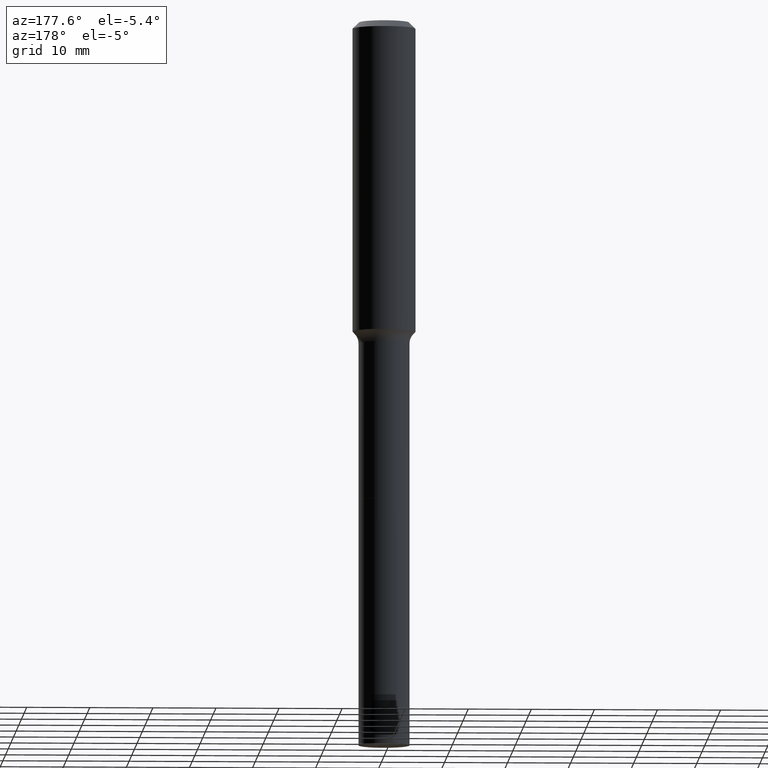
[diagram: clean part render]
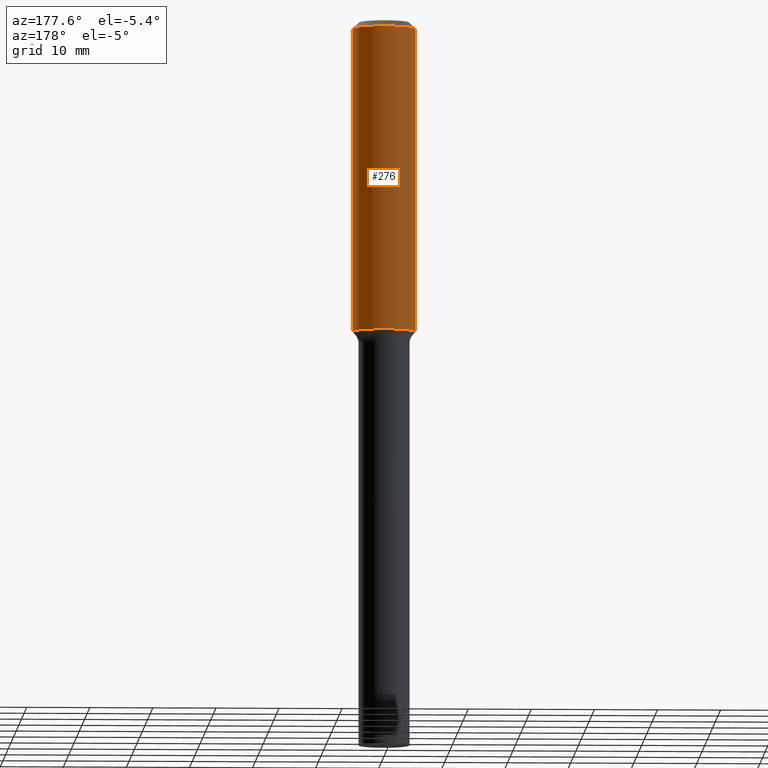
[diagram: same view with one face highlighted and labeled with its STEP entity id]
A machine part, auxiliary view. The second image highlights one B-rep face of the part: STEP entity #276.
In plain terms, the highlighted cylindrical surface (edge-blend (fillet) strip) has radius 5 mm, axis along (-0, 0, 1).
Its self-contained STEP definition (entity closure, byte-faithful):
#16 = EDGE_CURVE ( 'NONE', #395, #198, #453, .T. ) ;
#28 = EDGE_CURVE ( 'NONE', #369, #68, #243, .T. ) ;
#38 = CARTESIAN_POINT ( 'NONE',  ( 0.1968500000000002470, -8.134036243287336255E-15, -1.935980572195880711 ) ) ;
#44 = ORIENTED_EDGE ( 'NONE', *, *, #433, .T. ) ;
#68 = VERTEX_POINT ( 'NONE', #322 ) ;
#104 = CIRCLE ( 'NONE', #455, 0.1968500000000002470 ) ;
#111 = DIRECTION ( 'NONE',  ( 1.000000000000000000, -6.982962677686266711E-15, 4.876176775795935793E-29 ) ) ;
#113 = AXIS2_PLACEMENT_3D ( 'NONE', #497, #409, #290 ) ;
#123 = CARTESIAN_POINT ( 'NONE',  ( 0.1968500000000001082, -1.374596203102542397E-15, 9.598753983154305062E-30 ) ) ;
#146 = DIRECTION ( 'NONE',  ( -2.445468806185136597E-29, 3.491481338843145583E-15, 1.000000000000000000 ) ) ;
#159 = VECTOR ( 'NONE', #446, 39.37007874015748143 ) ;
#198 = VERTEX_POINT ( 'NONE', #392 ) ;
#199 = CARTESIAN_POINT ( 'NONE',  ( 4.734380098685478056E-29, -6.759440040184793069E-15, -1.935980572195880711 ) ) ;
#235 = ORIENTED_EDGE ( 'NONE', *, *, #28, .T. ) ;
#243 = LINE ( 'NONE', #405, #255 ) ;
#253 = DIRECTION ( 'NONE',  ( -2.445468806185136877E-29, 3.491481338843145188E-15, 1.000000000000000000 ) ) ;
#255 = VECTOR ( 'NONE', #253, 39.37007874015748143 ) ;
#276 = ADVANCED_FACE ( 'NONE', ( #463 ), #511, .T. ) ;
#287 = AXIS2_PLACEMENT_3D ( 'NONE', #354, #146, #111 ) ;
#290 = DIRECTION ( 'NONE',  ( 1.000000000000000000, -6.982962677686265922E-15, 0.000000000000000000 ) ) ;
#309 = CIRCLE ( 'NONE', #113, 0.1968500000000000250 ) ;
#318 = DIRECTION ( 'NONE',  ( 1.000000000000000000, -6.982962677686265133E-15, 0.000000000000000000 ) ) ;
#322 = CARTESIAN_POINT ( 'NONE',  ( -0.1968500000000000250, -2.049746454903765749E-15, -0.03937000000000026589 ) ) ;
#354 = CARTESIAN_POINT ( 'NONE',  ( 0.000000000000000000, 0.000000000000000000, 0.000000000000000000 ) ) ;
#362 = DIRECTION ( 'NONE',  ( -2.445468806185136597E-29, 3.491481338843145583E-15, 1.000000000000000000 ) ) ;
#369 = VERTEX_POINT ( 'NONE', #404 ) ;
#392 = CARTESIAN_POINT ( 'NONE',  ( 0.1968500000000000250, -1.512055823412797189E-15, -0.03937000000000026589 ) ) ;
#395 = VERTEX_POINT ( 'NONE', #38 ) ;
#401 = EDGE_LOOP ( 'NONE', ( #44, #235, #471, #403 ) ) ;
#403 = ORIENTED_EDGE ( 'NONE', *, *, #16, .F. ) ;
#404 = CARTESIAN_POINT ( 'NONE',  ( -0.1968500000000002470, -5.360736664841032915E-15, -1.935980572195880711 ) ) ;
#405 = CARTESIAN_POINT ( 'NONE',  ( -0.1968500000000001082, 1.398703375343757985E-15, -9.682923725166787881E-30 ) ) ;
#409 = DIRECTION ( 'NONE',  ( -2.445468806185136597E-29, 3.491481338843145583E-15, 1.000000000000000000 ) ) ;
#433 = EDGE_CURVE ( 'NONE', #395, #369, #104, .T. ) ;
#446 = DIRECTION ( 'NONE',  ( -2.445468806185136877E-29, 3.491481338843145188E-15, 1.000000000000000000 ) ) ;
#453 = LINE ( 'NONE', #123, #159 ) ;
#455 = AXIS2_PLACEMENT_3D ( 'NONE', #199, #362, #318 ) ;
#463 = FACE_OUTER_BOUND ( 'NONE', #401, .T. ) ;
#471 = ORIENTED_EDGE ( 'NONE', *, *, #487, .F. ) ;
#487 = EDGE_CURVE ( 'NONE', #198, #68, #309, .T. ) ;
#497 = CARTESIAN_POINT ( 'NONE',  ( 9.627810689950948900E-31, -1.374596203102555561E-16, -0.03937000000000026589 ) ) ;
#511 = CYLINDRICAL_SURFACE ( 'NONE', #287, 0.1968500000000001082 ) ;